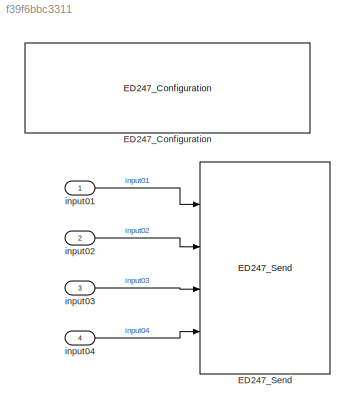
MODEL slx_f39f6bbc3311
KIND model
CONFIG AbsTol = auto
CONFIG EnableMultiTasking = off
CONFIG FixedStep = auto
CONFIG MaxStep = auto
CONFIG MinStep = auto
CONFIG PreLoadFcn = fprintf(1, '[PreLoadFcn] Load send_nad_sample_inputs.mat\n');\nload('send_nad_sample_inputs')
CONFIG RelTol = 1e-3
CONFIG SampleTimeConstraint = Unconstrained
CONFIG Solver = FixedStepAuto
CONFIG SolverName = FixedStepAuto
CONFIG StartTime = 0.0
CONFIG StopTime = 10.0
WORKSPACE source: mxarray member
WORKSPACE ED247Configuration: object (value not decoded)
BLOCK [Reference] ED247_Configuration  REF=lib_ed247/ED247_Configuration
  Ports = []
  SourceBlock = lib_ed247/ED247_Configuration
  SourceProductName = Airbus ED247
  SourceType = Configurable block example
BLOCK [Reference] ED247_Send  REF=lib_ed247/ED247_Send
  Ports = [4]
  SourceBlock = lib_ed247/ED247_Send
  SourceProductName = Airbus ED247
  SourceType = ED247 Send
BLOCK [Inport] input01
  IconDisplay = Port number
  OutDataTypeStr = uint8
  SampleTime = 0.5
BLOCK [Inport] input02
  IconDisplay = Port number
  OutDataTypeStr = uint8
  Port = 2
  SampleTime = 0.5
BLOCK [Inport] input03
  IconDisplay = Port number
  OutDataTypeStr = uint8
  Port = 3
  SampleTime = 0.5
BLOCK [Inport] input04
  IconDisplay = Port number
  OutDataTypeStr = single
  Port = 4
  PortDimensions = [2,2]
  SampleTime = 0.5
LINE input01:1 -> ED247_Send:1
LINE input02:1 -> ED247_Send:2
LINE input03:1 -> ED247_Send:3
LINE input04:1 -> ED247_Send:4
